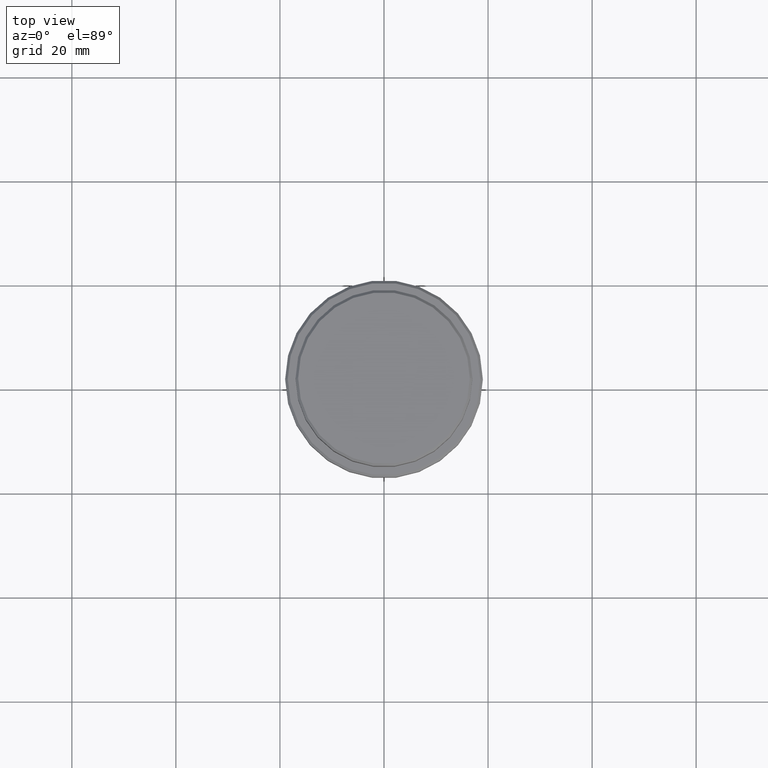
[diagram: clean part render]
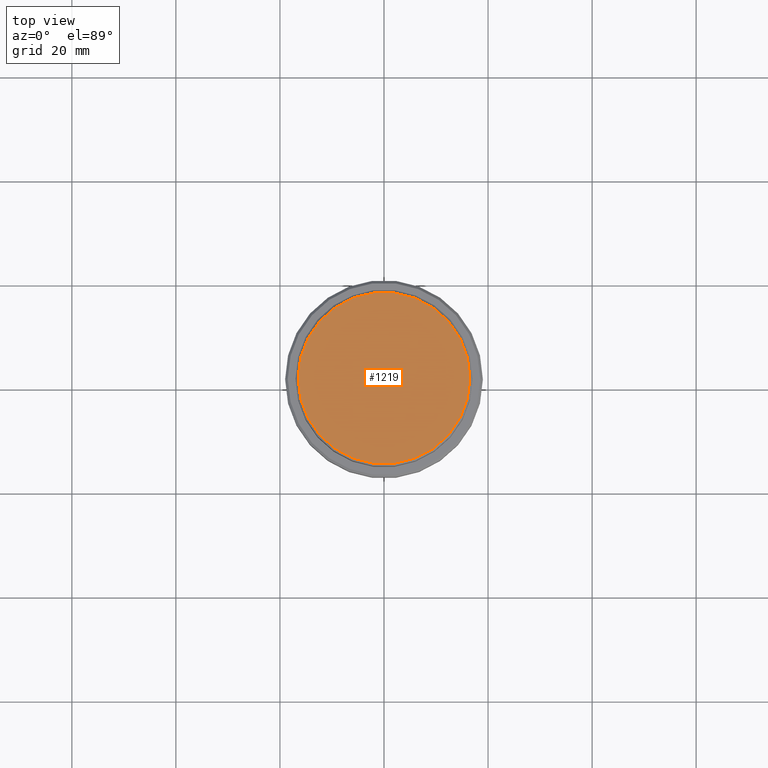
[diagram: same view with one face highlighted and labeled with its STEP entity id]
A machine part, top view. The second image highlights one B-rep face of the part: STEP entity #1219.
In plain terms, the highlighted planar face has unit normal (0, -0, 1).
Its self-contained STEP definition (entity closure, byte-faithful):
#26 = ORIENTED_EDGE ( 'NONE', *, *, #584, .T. ) ;
#72 = DIRECTION ( 'NONE',  ( 1.000000000000000000, 0.000000000000000000, 0.000000000000000000 ) ) ;
#119 = EDGE_CURVE ( 'NONE', #1333, #1312, #1084, .T. ) ;
#180 = PLANE ( 'NONE',  #772 ) ;
#207 = DIRECTION ( 'NONE',  ( -0.000000000000000000, -0.000000000000000000, 1.000000000000000000 ) ) ;
#398 = DIRECTION ( 'NONE',  ( 0.000000000000000000, -0.000000000000000000, 1.000000000000000000 ) ) ;
#416 = AXIS2_PLACEMENT_3D ( 'NONE', #750, #1290, #535 ) ;
#417 = EDGE_LOOP ( 'NONE', ( #1143, #26 ) ) ;
#453 = CARTESIAN_POINT ( 'NONE',  ( 16.50000000000004263, 2.051283388571818859E-15, 0.000000000000000000 ) ) ;
#535 = DIRECTION ( 'NONE',  ( 1.000000000000000000, 0.000000000000000000, 0.000000000000000000 ) ) ;
#570 = AXIS2_PLACEMENT_3D ( 'NONE', #1178, #207, #642 ) ;
#584 = EDGE_CURVE ( 'NONE', #1312, #1333, #1022, .T. ) ;
#599 = CARTESIAN_POINT ( 'NONE',  ( 0.000000000000000000, 0.000000000000000000, 0.000000000000000000 ) ) ;
#642 = DIRECTION ( 'NONE',  ( 1.000000000000000000, 0.000000000000000000, 0.000000000000000000 ) ) ;
#720 = FACE_OUTER_BOUND ( 'NONE', #417, .T. ) ;
#750 = CARTESIAN_POINT ( 'NONE',  ( 0.000000000000000000, 0.000000000000000000, 0.000000000000000000 ) ) ;
#772 = AXIS2_PLACEMENT_3D ( 'NONE', #599, #398, #72 ) ;
#1022 = CIRCLE ( 'NONE', #416, 16.50000000000004263 ) ;
#1084 = CIRCLE ( 'NONE', #570, 16.50000000000004263 ) ;
#1143 = ORIENTED_EDGE ( 'NONE', *, *, #119, .T. ) ;
#1178 = CARTESIAN_POINT ( 'NONE',  ( 0.000000000000000000, 0.000000000000000000, 0.000000000000000000 ) ) ;
#1219 = ADVANCED_FACE ( 'NONE', ( #720 ), #180, .T. ) ;
#1290 = DIRECTION ( 'NONE',  ( -0.000000000000000000, -0.000000000000000000, 1.000000000000000000 ) ) ;
#1297 = CARTESIAN_POINT ( 'NONE',  ( -16.50000000000004263, 0.000000000000000000, 0.000000000000000000 ) ) ;
#1312 = VERTEX_POINT ( 'NONE', #453 ) ;
#1333 = VERTEX_POINT ( 'NONE', #1297 ) ;